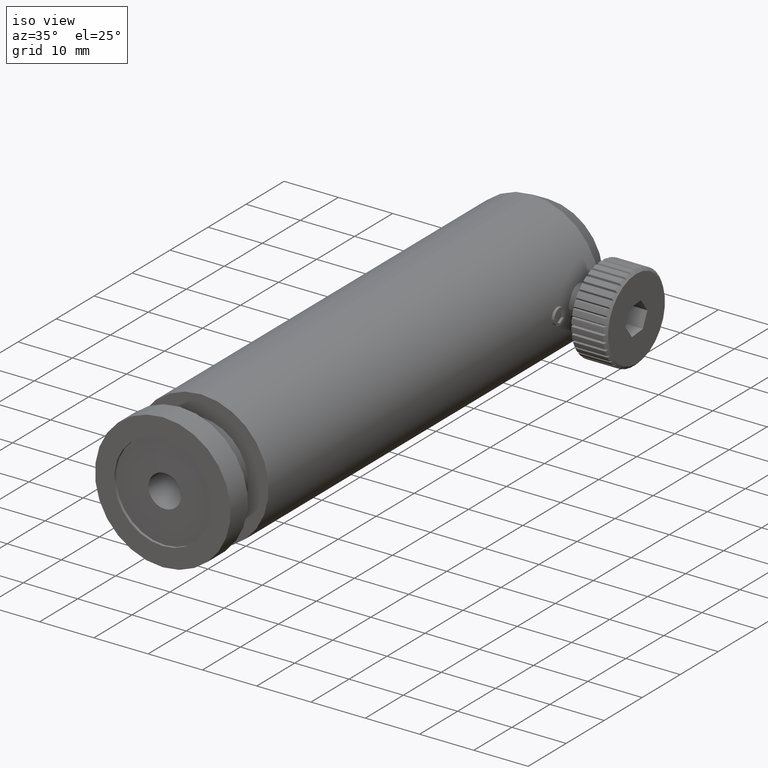
[diagram: clean part render]
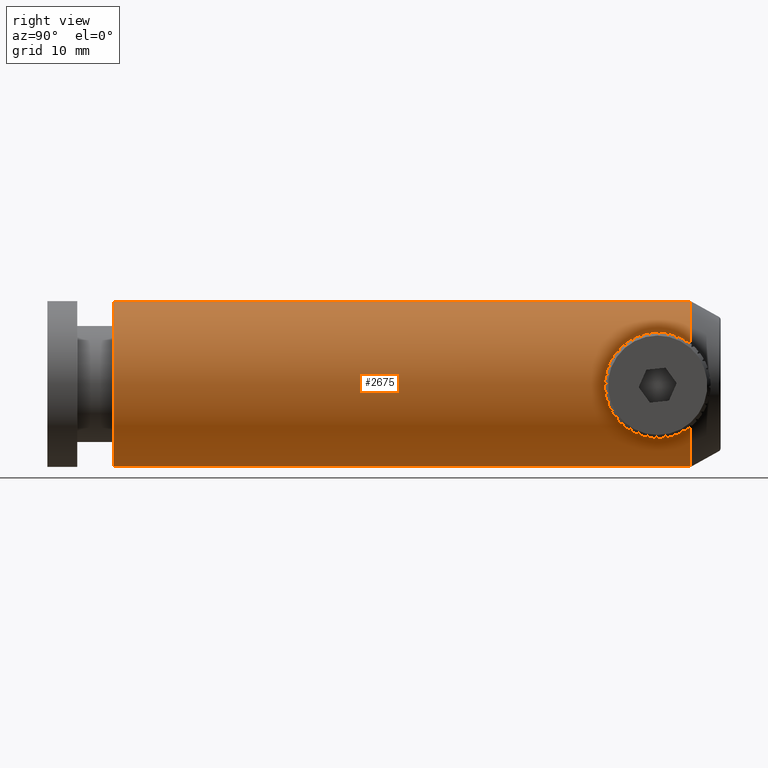
[diagram: tour spotlight — one face highlighted and labeled with its STEP entity id]
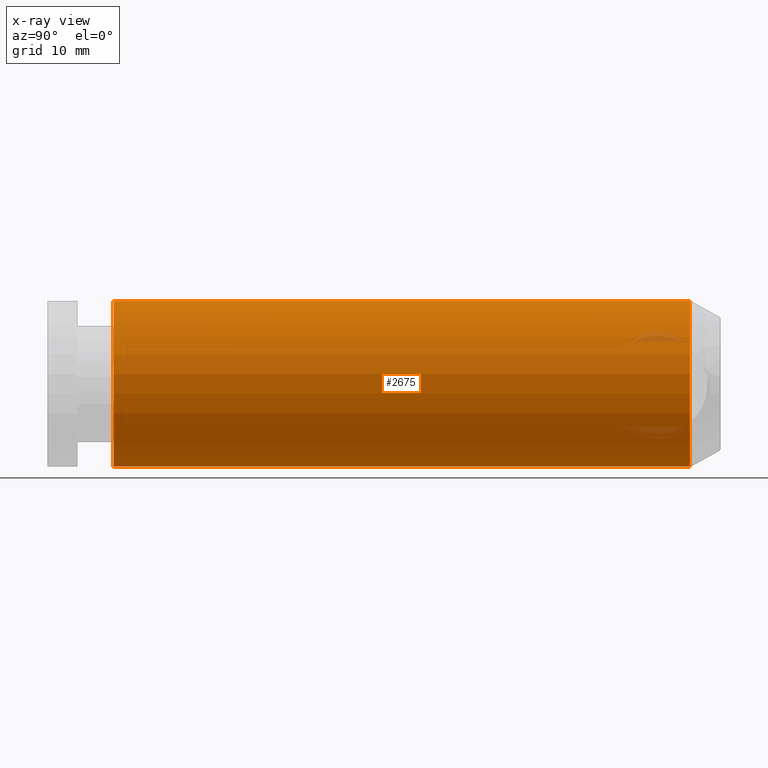
[diagram: x-ray of the same camera — body ghosted, this tour face saturated]
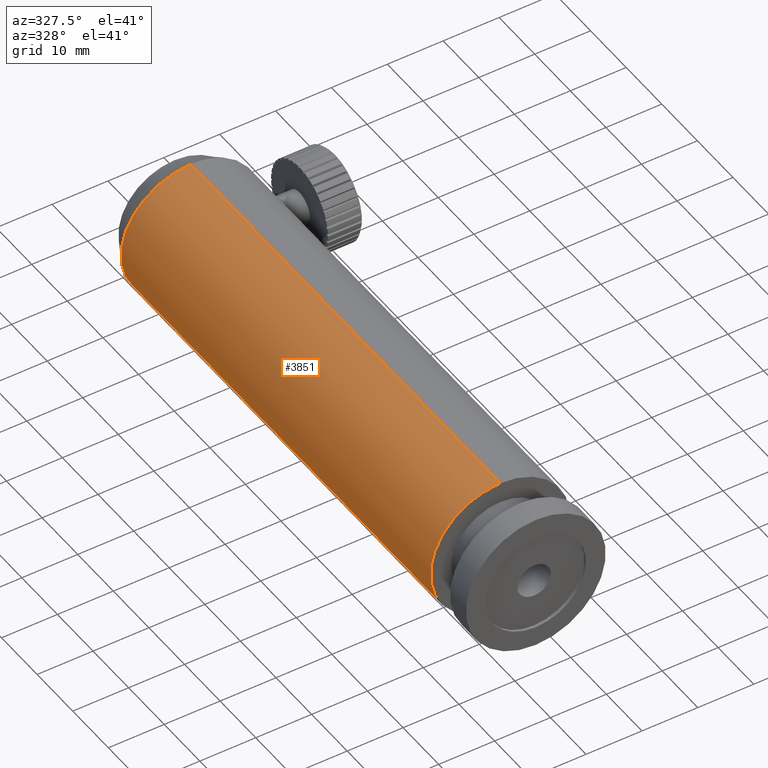
[diagram: tour spotlight — one face highlighted and labeled with its STEP entity id]
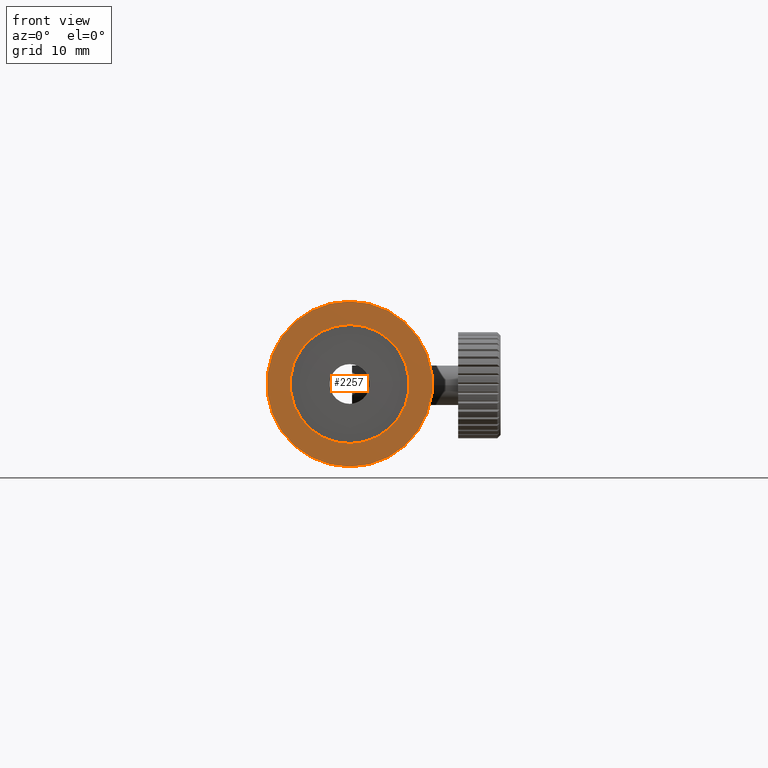
[diagram: tour spotlight — one face highlighted and labeled with its STEP entity id]
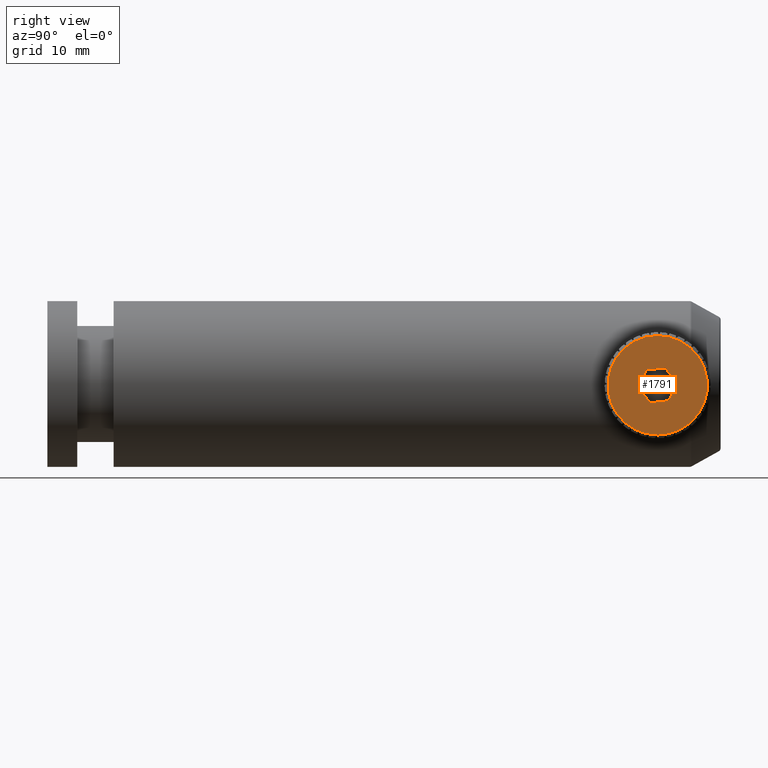
[diagram: tour spotlight — one face highlighted and labeled with its STEP entity id]
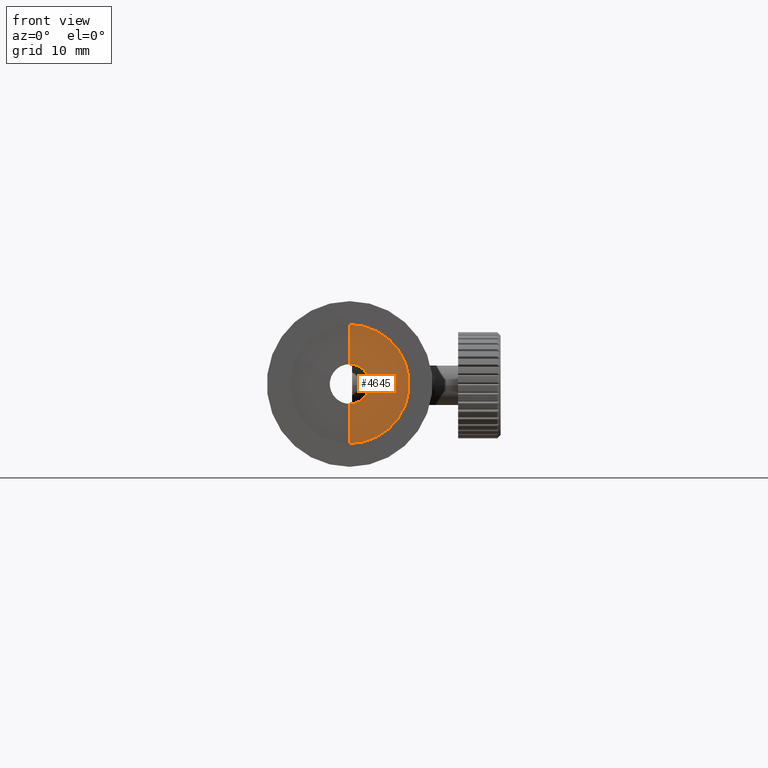
[diagram: tour spotlight — one face highlighted and labeled with its STEP entity id]
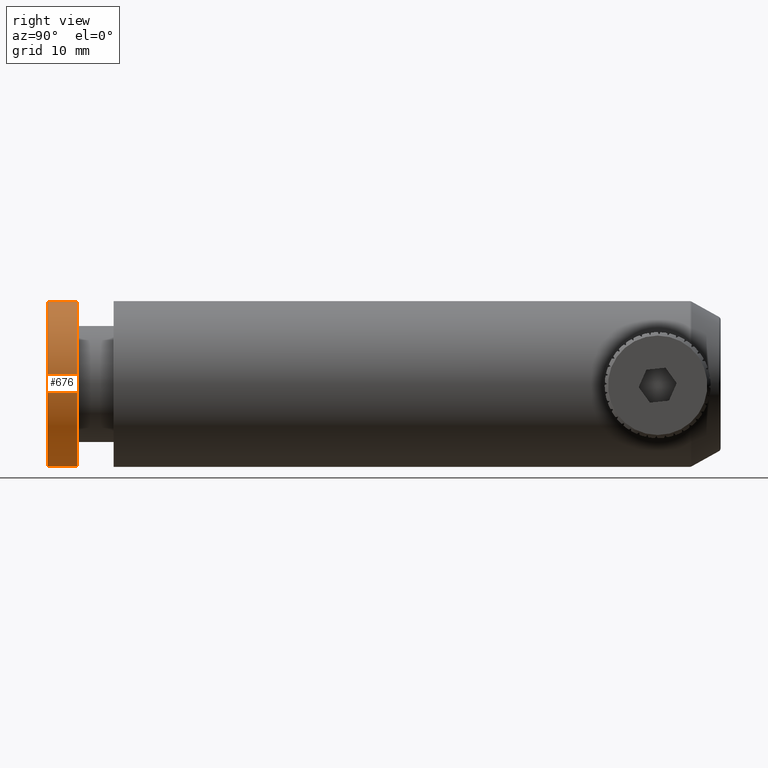
[diagram: tour spotlight — one face highlighted and labeled with its STEP entity id]
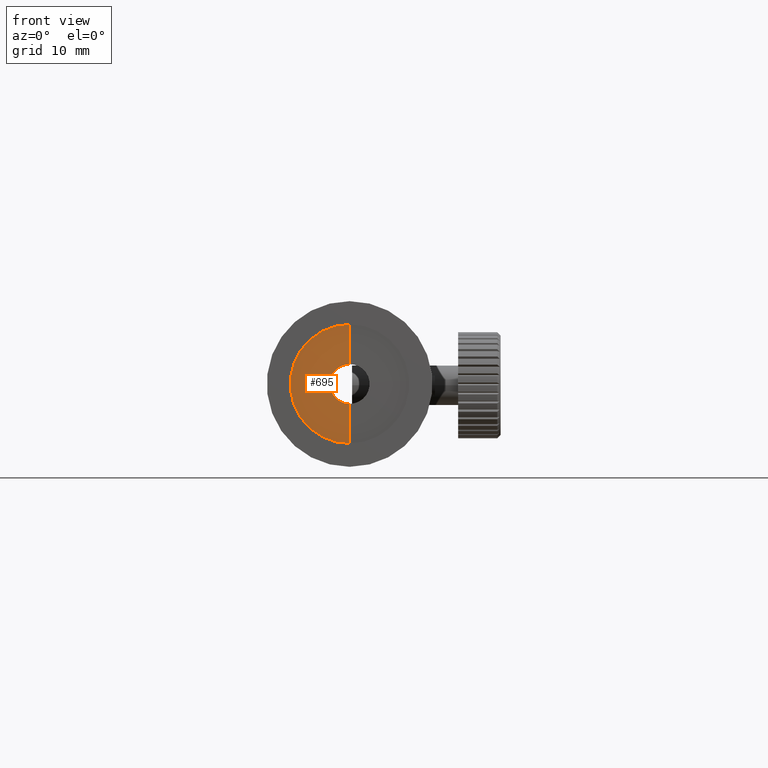
[diagram: tour spotlight — one face highlighted and labeled with its STEP entity id]
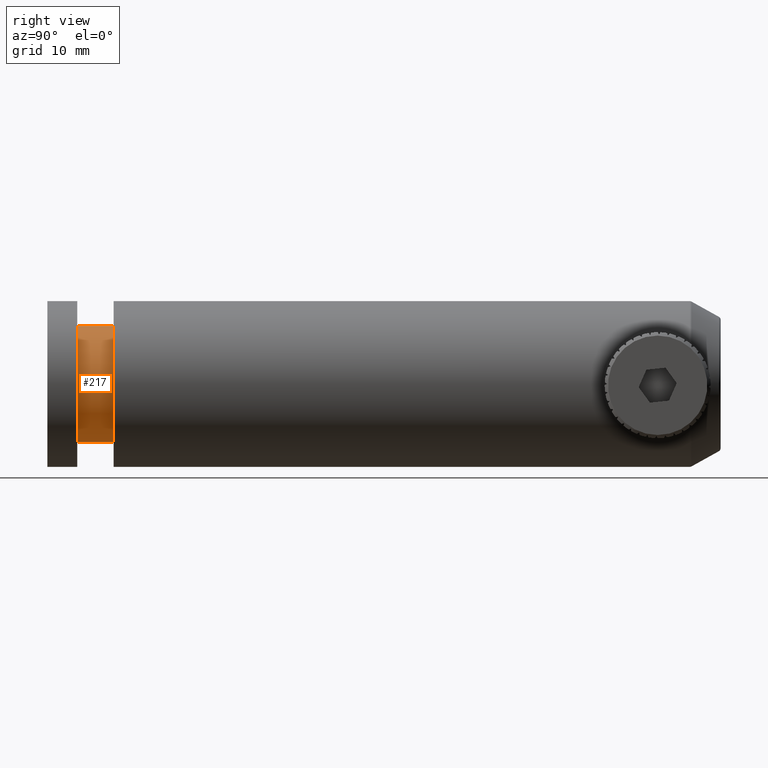
[diagram: tour spotlight — one face highlighted and labeled with its STEP entity id]
A machine part: a face-by-face anatomy tour. The part has 163 B-rep faces; the first image is the clean iso view, then the 8 largest visible faces are spotlighted one at a time (largest first), each with its STEP entity span.

Face 1 — right view, entity #2675. An x-ray twin of the same camera follows (body ghosted, this face saturated) — the face is partly hidden behind the body. In plain terms, the highlighted cylindrical surface (partial cylindrical patch) has radius 12.5 mm, axis along (-0, -1, -0).
Definition (entity closure, byte-faithful):
#15 = DIRECTION ( 'NONE',  ( -0.0000000000000000000, -1.000000000000000000, -0.0000000000000000000 ) ) ;
#55 = EDGE_CURVE ( 'NONE', #279, #980, #3247, .T. ) ;
#142 = CYLINDRICAL_SURFACE ( 'NONE', #4853, 12.50000000000000000 ) ;
#246 = CARTESIAN_POINT ( 'NONE',  ( -3.891022268973183300, 80.65682492629146300, 11.50000000000000000 ) ) ;
#262 = ORIENTED_EDGE ( 'NONE', *, *, #310, .F. ) ;
#279 = VERTEX_POINT ( 'NONE', #4040 ) ;
#291 = VECTOR ( 'NONE', #15, 1000.000000000000000 ) ;
#310 = EDGE_CURVE ( 'NONE', #279, #1999, #5162, .T. ) ;
#625 = DIRECTION ( 'NONE',  ( -0.0000000000000000000, -1.000000000000000000, -0.0000000000000000000 ) ) ;
#715 = CIRCLE ( 'NONE', #1389, 12.50000000000000000 ) ;
#911 = DIRECTION ( 'NONE',  ( -0.0000000000000000000, -1.000000000000000000, -0.0000000000000000000 ) ) ;
#975 = ORIENTED_EDGE ( 'NONE', *, *, #55, .T. ) ;
#980 = VERTEX_POINT ( 'NONE', #246 ) ;
#1212 = CARTESIAN_POINT ( 'NONE',  ( -3.891022268973185000, -24.16253506236343200, -13.50000000000000200 ) ) ;
#1389 = AXIS2_PLACEMENT_3D ( 'NONE', #4582, #911, #2898 ) ;
#1518 = DIRECTION ( 'NONE',  ( -0.0000000000000000000, -1.000000000000000000, -0.0000000000000000000 ) ) ;
#1618 = CARTESIAN_POINT ( 'NONE',  ( -3.891022268973185000, -6.313612059609841500, -13.50000000000000200 ) ) ;
#1623 = FACE_OUTER_BOUND ( 'NONE', #2686, .T. ) ;
#1995 = ORIENTED_EDGE ( 'NONE', *, *, #2417, .T. ) ;
#1999 = VERTEX_POINT ( 'NONE', #1618 ) ;
#2161 = CARTESIAN_POINT ( 'NONE',  ( -3.891022268973185000, 80.65682492629146300, -1.000000000000000000 ) ) ;
#2170 = DIRECTION ( 'NONE',  ( -0.0000000000000000000, -1.000000000000000000, -0.0000000000000000000 ) ) ;
#2361 = EDGE_CURVE ( 'NONE', #1999, #5224, #715, .T. ) ;
#2417 = EDGE_CURVE ( 'NONE', #980, #5224, #3510, .T. ) ;
#2675 = ADVANCED_FACE ( 'NONE', ( #1623 ), #142, .T. ) ;
#2686 = EDGE_LOOP ( 'NONE', ( #975, #1995, #5082, #262 ) ) ;
#2898 = DIRECTION ( 'NONE',  ( 0.0000000000000000000, 0.0000000000000000000, -1.000000000000000000 ) ) ;
#3007 = AXIS2_PLACEMENT_3D ( 'NONE', #2161, #2170, #4137 ) ;
#3247 = CIRCLE ( 'NONE', #3007, 12.50000000000000000 ) ;
#3510 = LINE ( 'NONE', #4200, #4346 ) ;
#4040 = CARTESIAN_POINT ( 'NONE',  ( -3.891022268973185000, 80.65682492629146300, -13.50000000000000200 ) ) ;
#4137 = DIRECTION ( 'NONE',  ( 0.0000000000000000000, 0.0000000000000000000, -1.000000000000000000 ) ) ;
#4200 = CARTESIAN_POINT ( 'NONE',  ( -3.891022268973183300, -24.16253506236343200, 11.50000000000000000 ) ) ;
#4346 = VECTOR ( 'NONE', #1518, 1000.000000000000000 ) ;
#4573 = DIRECTION ( 'NONE',  ( 0.0000000000000000000, 0.0000000000000000000, -1.000000000000000000 ) ) ;
#4578 = CARTESIAN_POINT ( 'NONE',  ( -3.891022268973185000, -24.16253506236343200, -1.000000000000000000 ) ) ;
#4582 = CARTESIAN_POINT ( 'NONE',  ( -3.891022268973185000, -6.313612059609841500, -1.000000000000000000 ) ) ;
#4712 = CARTESIAN_POINT ( 'NONE',  ( -3.891022268973183300, -6.313612059609841500, 11.50000000000000000 ) ) ;
#4853 = AXIS2_PLACEMENT_3D ( 'NONE', #4578, #625, #4573 ) ;
#5082 = ORIENTED_EDGE ( 'NONE', *, *, #2361, .F. ) ;
#5162 = LINE ( 'NONE', #1212, #291 ) ;
#5224 = VERTEX_POINT ( 'NONE', #4712 ) ;

Face 2 — auxiliary view, entity #3851. In plain terms, the highlighted cylindrical surface (partial cylindrical patch) has radius 12.5 mm, axis along (-0, -1, -0).
Definition (entity closure, byte-faithful):
#15 = DIRECTION ( 'NONE',  ( -0.0000000000000000000, -1.000000000000000000, -0.0000000000000000000 ) ) ;
#246 = CARTESIAN_POINT ( 'NONE',  ( -3.891022268973183300, 80.65682492629146300, 11.50000000000000000 ) ) ;
#279 = VERTEX_POINT ( 'NONE', #4040 ) ;
#291 = VECTOR ( 'NONE', #15, 1000.000000000000000 ) ;
#310 = EDGE_CURVE ( 'NONE', #279, #1999, #5162, .T. ) ;
#315 = EDGE_CURVE ( 'NONE', #5224, #1999, #1378, .T. ) ;
#426 = DIRECTION ( 'NONE',  ( -0.0000000000000000000, -1.000000000000000000, -0.0000000000000000000 ) ) ;
#554 = AXIS2_PLACEMENT_3D ( 'NONE', #1996, #426, #4865 ) ;
#885 = CARTESIAN_POINT ( 'NONE',  ( -3.891022268973185000, -24.16253506236343200, -1.000000000000000000 ) ) ;
#949 = ORIENTED_EDGE ( 'NONE', *, *, #310, .T. ) ;
#980 = VERTEX_POINT ( 'NONE', #246 ) ;
#989 = CARTESIAN_POINT ( 'NONE',  ( -3.891022268973185000, 80.65682492629146300, -1.000000000000000000 ) ) ;
#1095 = ORIENTED_EDGE ( 'NONE', *, *, #315, .F. ) ;
#1212 = CARTESIAN_POINT ( 'NONE',  ( -3.891022268973185000, -24.16253506236343200, -13.50000000000000200 ) ) ;
#1378 = CIRCLE ( 'NONE', #554, 12.50000000000000000 ) ;
#1393 = AXIS2_PLACEMENT_3D ( 'NONE', #885, #2942, #5197 ) ;
#1476 = DIRECTION ( 'NONE',  ( 0.0000000000000000000, 0.0000000000000000000, -1.000000000000000000 ) ) ;
#1518 = DIRECTION ( 'NONE',  ( -0.0000000000000000000, -1.000000000000000000, -0.0000000000000000000 ) ) ;
#1618 = CARTESIAN_POINT ( 'NONE',  ( -3.891022268973185000, -6.313612059609841500, -13.50000000000000200 ) ) ;
#1996 = CARTESIAN_POINT ( 'NONE',  ( -3.891022268973185000, -6.313612059609841500, -1.000000000000000000 ) ) ;
#1999 = VERTEX_POINT ( 'NONE', #1618 ) ;
#2002 = CIRCLE ( 'NONE', #4111, 12.50000000000000000 ) ;
#2224 = EDGE_CURVE ( 'NONE', #980, #279, #2002, .T. ) ;
#2417 = EDGE_CURVE ( 'NONE', #980, #5224, #3510, .T. ) ;
#2699 = ORIENTED_EDGE ( 'NONE', *, *, #2224, .T. ) ;
#2942 = DIRECTION ( 'NONE',  ( -0.0000000000000000000, -1.000000000000000000, -0.0000000000000000000 ) ) ;
#3058 = DIRECTION ( 'NONE',  ( -0.0000000000000000000, -1.000000000000000000, -0.0000000000000000000 ) ) ;
#3510 = LINE ( 'NONE', #4200, #4346 ) ;
#3851 = ADVANCED_FACE ( 'NONE', ( #4575 ), #4987, .T. ) ;
#4040 = CARTESIAN_POINT ( 'NONE',  ( -3.891022268973185000, 80.65682492629146300, -13.50000000000000200 ) ) ;
#4111 = AXIS2_PLACEMENT_3D ( 'NONE', #989, #3058, #1476 ) ;
#4143 = EDGE_LOOP ( 'NONE', ( #4546, #2699, #949, #1095 ) ) ;
#4200 = CARTESIAN_POINT ( 'NONE',  ( -3.891022268973183300, -24.16253506236343200, 11.50000000000000000 ) ) ;
#4346 = VECTOR ( 'NONE', #1518, 1000.000000000000000 ) ;
#4546 = ORIENTED_EDGE ( 'NONE', *, *, #2417, .F. ) ;
#4575 = FACE_OUTER_BOUND ( 'NONE', #4143, .T. ) ;
#4712 = CARTESIAN_POINT ( 'NONE',  ( -3.891022268973183300, -6.313612059609841500, 11.50000000000000000 ) ) ;
#4865 = DIRECTION ( 'NONE',  ( 0.0000000000000000000, 0.0000000000000000000, -1.000000000000000000 ) ) ;
#4987 = CYLINDRICAL_SURFACE ( 'NONE', #1393, 12.50000000000000000 ) ;
#5162 = LINE ( 'NONE', #1212, #291 ) ;
#5197 = DIRECTION ( 'NONE',  ( 0.0000000000000000000, 0.0000000000000000000, -1.000000000000000000 ) ) ;
#5224 = VERTEX_POINT ( 'NONE', #4712 ) ;

Face 3 — front view, entity #2257. In plain terms, the highlighted planar face has unit normal (0, 1, 0).
Definition (entity closure, byte-faithful):
#13 = EDGE_LOOP ( 'NONE', ( #3638, #5262 ) ) ;
#116 = DIRECTION ( 'NONE',  ( -0.0000000000000000000, -1.000000000000000000, -0.0000000000000000000 ) ) ;
#147 = CIRCLE ( 'NONE', #2947, 8.978359672281113600 ) ;
#329 = CARTESIAN_POINT ( 'NONE',  ( -16.39102226897318500, -16.31361205960983400, -1.000000000000000000 ) ) ;
#549 = CIRCLE ( 'NONE', #4564, 12.50000000000000000 ) ;
#568 = CARTESIAN_POINT ( 'NONE',  ( -3.891022268973185000, -16.31361205960983400, -1.000000000000000000 ) ) ;
#598 = CARTESIAN_POINT ( 'NONE',  ( -3.891022268973185000, -16.31361205960983400, -1.000000000000000000 ) ) ;
#644 = CARTESIAN_POINT ( 'NONE',  ( -3.891022268973185000, -16.31361205960983400, -1.000000000000000000 ) ) ;
#1149 = DIRECTION ( 'NONE',  ( 0.0000000000000000000, -0.0000000000000000000, 1.000000000000000000 ) ) ;
#1207 = DIRECTION ( 'NONE',  ( 0.0000000000000000000, 0.0000000000000000000, -1.000000000000000000 ) ) ;
#1259 = CARTESIAN_POINT ( 'NONE',  ( -3.891022268973185000, -16.31361205960983400, 7.978359672281113600 ) ) ;
#1328 = AXIS2_PLACEMENT_3D ( 'NONE', #598, #3993, #1207 ) ;
#1385 = DIRECTION ( 'NONE',  ( 0.0000000000000000000, 0.0000000000000000000, -1.000000000000000000 ) ) ;
#1497 = DIRECTION ( 'NONE',  ( 0.0000000000000000000, 1.000000000000000000, 0.0000000000000000000 ) ) ;
#1761 = ORIENTED_EDGE ( 'NONE', *, *, #1837, .F. ) ;
#1837 = EDGE_CURVE ( 'NONE', #5053, #2566, #147, .T. ) ;
#1908 = DIRECTION ( 'NONE',  ( 0.0000000000000000000, 0.0000000000000000000, -1.000000000000000000 ) ) ;
#2257 = ADVANCED_FACE ( 'NONE', ( #4355, #3566 ), #3163, .F. ) ;
#2273 = AXIS2_PLACEMENT_3D ( 'NONE', #329, #1497, #1149 ) ;
#2466 = CARTESIAN_POINT ( 'NONE',  ( -3.891022268973183700, -16.31361205960983400, -9.978359672281115400 ) ) ;
#2566 = VERTEX_POINT ( 'NONE', #2466 ) ;
#2743 = AXIS2_PLACEMENT_3D ( 'NONE', #3562, #2765, #2823 ) ;
#2752 = EDGE_LOOP ( 'NONE', ( #1761, #3030 ) ) ;
#2765 = DIRECTION ( 'NONE',  ( -0.0000000000000000000, -1.000000000000000000, -0.0000000000000000000 ) ) ;
#2823 = DIRECTION ( 'NONE',  ( 0.0000000000000000000, 0.0000000000000000000, -1.000000000000000000 ) ) ;
#2897 = VERTEX_POINT ( 'NONE', #3971 ) ;
#2911 = EDGE_CURVE ( 'NONE', #2566, #5053, #4341, .T. ) ;
#2947 = AXIS2_PLACEMENT_3D ( 'NONE', #644, #3090, #1908 ) ;
#3030 = ORIENTED_EDGE ( 'NONE', *, *, #2911, .F. ) ;
#3050 = CARTESIAN_POINT ( 'NONE',  ( -3.891022268973183300, -16.31361205960983400, 11.50000000000000000 ) ) ;
#3090 = DIRECTION ( 'NONE',  ( -0.0000000000000000000, -1.000000000000000000, -0.0000000000000000000 ) ) ;
#3163 = PLANE ( 'NONE',  #2273 ) ;
#3378 = EDGE_CURVE ( 'NONE', #5199, #2897, #4837, .T. ) ;
#3562 = CARTESIAN_POINT ( 'NONE',  ( -3.891022268973185000, -16.31361205960983400, -1.000000000000000000 ) ) ;
#3566 = FACE_OUTER_BOUND ( 'NONE', #13, .T. ) ;
#3638 = ORIENTED_EDGE ( 'NONE', *, *, #4588, .T. ) ;
#3971 = CARTESIAN_POINT ( 'NONE',  ( -3.891022268973185000, -16.31361205960983400, -13.50000000000000200 ) ) ;
#3993 = DIRECTION ( 'NONE',  ( -0.0000000000000000000, -1.000000000000000000, -0.0000000000000000000 ) ) ;
#4341 = CIRCLE ( 'NONE', #2743, 8.978359672281113600 ) ;
#4355 = FACE_BOUND ( 'NONE', #2752, .T. ) ;
#4564 = AXIS2_PLACEMENT_3D ( 'NONE', #568, #116, #1385 ) ;
#4588 = EDGE_CURVE ( 'NONE', #2897, #5199, #549, .T. ) ;
#4837 = CIRCLE ( 'NONE', #1328, 12.50000000000000000 ) ;
#5053 = VERTEX_POINT ( 'NONE', #1259 ) ;
#5199 = VERTEX_POINT ( 'NONE', #3050 ) ;
#5262 = ORIENTED_EDGE ( 'NONE', *, *, #3378, .T. ) ;

Face 4 — right view, entity #1791. In plain terms, the highlighted planar face has unit normal (-1, 0, -0).
Definition (entity closure, byte-faithful):
#52 = CARTESIAN_POINT ( 'NONE',  ( 18.88421014442428000, 76.95875149867944700, 1.442051653525515500 ) ) ;
#158 = LINE ( 'NONE', #159, #847 ) ;
#159 = CARTESIAN_POINT ( 'NONE',  ( 18.88421014442428000, 77.48475705045689200, -3.530203183014877700 ) ) ;
#213 = VECTOR ( 'NONE', #2588, 1000.000000000000000 ) ;
#254 = CARTESIAN_POINT ( 'NONE',  ( 18.88421014442428000, 72.91565527203415800, -1.499609935115584900 ) ) ;
#312 = CARTESIAN_POINT ( 'NONE',  ( 18.88421014442428000, 75.78638794039017100, 6.304079511798359900 ) ) ;
#318 = AXIS2_PLACEMENT_3D ( 'NONE', #515, #3806, #4596 ) ;
#432 = DIRECTION ( 'NONE',  ( -1.000000000000000000, 0.0000000000000000000, 0.0000000000000000000 ) ) ;
#457 = VECTOR ( 'NONE', #2423, 1000.000000000000100 ) ;
#515 = CARTESIAN_POINT ( 'NONE',  ( 18.88421014442428000, 75.78638794039017100, -1.195920488201649000 ) ) ;
#524 = FACE_BOUND ( 'NONE', #5205, .T. ) ;
#531 = AXIS2_PLACEMENT_3D ( 'NONE', #880, #432, #3308 ) ;
#708 = CIRCLE ( 'NONE', #4002, 7.500000000000008000 ) ;
#847 = VECTOR ( 'NONE', #3752, 1000.000000000000000 ) ;
#865 = DIRECTION ( 'NONE',  ( 0.0000000000000000000, -0.9944509673080784700, -0.1052011103554854700 ) ) ;
#880 = CARTESIAN_POINT ( 'NONE',  ( 18.88421014442428000, 75.78638794039017100, -1.195920488201649200 ) ) ;
#1044 = DIRECTION ( 'NONE',  ( 0.0000000000000000000, -0.4061186495798561600, -0.9138203556845482200 ) ) ;
#1061 = VERTEX_POINT ( 'NONE', #312 ) ;
#1081 = CARTESIAN_POINT ( 'NONE',  ( 18.88421014442428000, 74.08801883032343500, 1.138362206611580400 ) ) ;
#1170 = VECTOR ( 'NONE', #5217, 1000.000000000000100 ) ;
#1299 = LINE ( 'NONE', #4191, #213 ) ;
#1308 = CARTESIAN_POINT ( 'NONE',  ( 18.88421014442428000, 78.65712060874616900, -0.8922310412877158000 ) ) ;
#1360 = LINE ( 'NONE', #3737, #457 ) ;
#1374 = EDGE_CURVE ( 'NONE', #5069, #3118, #1299, .T. ) ;
#1493 = EDGE_CURVE ( 'NONE', #1629, #4760, #2761, .T. ) ;
#1629 = VERTEX_POINT ( 'NONE', #5233 ) ;
#1746 = ORIENTED_EDGE ( 'NONE', *, *, #1493, .F. ) ;
#1790 = PLANE ( 'NONE',  #318 ) ;
#1791 = ADVANCED_FACE ( 'NONE', ( #3094, #524 ), #1790, .F. ) ;
#1980 = CARTESIAN_POINT ( 'NONE',  ( 18.88421014442428000, 74.61402438210088000, -3.833892629928814500 ) ) ;
#2062 = VERTEX_POINT ( 'NONE', #2072 ) ;
#2072 = CARTESIAN_POINT ( 'NONE',  ( 18.88421014442428000, 74.08801883032343500, 1.138362206611580600 ) ) ;
#2134 = ORIENTED_EDGE ( 'NONE', *, *, #2220, .F. ) ;
#2157 = CARTESIAN_POINT ( 'NONE',  ( 18.88421014442428000, 75.78638794039017100, -1.195920488201649200 ) ) ;
#2220 = EDGE_CURVE ( 'NONE', #5033, #5069, #158, .T. ) ;
#2263 = ORIENTED_EDGE ( 'NONE', *, *, #4507, .F. ) ;
#2423 = DIRECTION ( 'NONE',  ( 0.0000000000000000000, 0.9944509673080784700, 0.1052011103554854700 ) ) ;
#2491 = EDGE_CURVE ( 'NONE', #4760, #5033, #1360, .T. ) ;
#2588 = DIRECTION ( 'NONE',  ( 0.0000000000000000000, -0.5883323177282207000, 0.8086192453290609300 ) ) ;
#2593 = EDGE_CURVE ( 'NONE', #3118, #2062, #4743, .T. ) ;
#2666 = EDGE_CURVE ( 'NONE', #1061, #4805, #708, .T. ) ;
#2687 = ORIENTED_EDGE ( 'NONE', *, *, #1374, .F. ) ;
#2761 = LINE ( 'NONE', #254, #1170 ) ;
#2842 = ORIENTED_EDGE ( 'NONE', *, *, #2666, .F. ) ;
#3094 = FACE_OUTER_BOUND ( 'NONE', #4135, .T. ) ;
#3095 = ORIENTED_EDGE ( 'NONE', *, *, #2491, .F. ) ;
#3118 = VERTEX_POINT ( 'NONE', #3977 ) ;
#3308 = DIRECTION ( 'NONE',  ( 0.0000000000000000000, 0.0000000000000000000, 1.000000000000000000 ) ) ;
#3384 = DIRECTION ( 'NONE',  ( -1.000000000000000000, 0.0000000000000000000, 0.0000000000000000000 ) ) ;
#3457 = EDGE_CURVE ( 'NONE', #2062, #1629, #3529, .T. ) ;
#3529 = LINE ( 'NONE', #1081, #4904 ) ;
#3672 = CARTESIAN_POINT ( 'NONE',  ( 18.88421014442428000, 77.48475705045689200, -3.530203183014878100 ) ) ;
#3737 = CARTESIAN_POINT ( 'NONE',  ( 18.88421014442428000, 74.61402438210088000, -3.833892629928812300 ) ) ;
#3752 = DIRECTION ( 'NONE',  ( 0.0000000000000000000, 0.4061186495798563300, 0.9138203556845481100 ) ) ;
#3806 = DIRECTION ( 'NONE',  ( -1.000000000000000000, 1.155557966632341200E-032, -1.368455531567204200E-048 ) ) ;
#3901 = VECTOR ( 'NONE', #865, 1000.000000000000100 ) ;
#3977 = CARTESIAN_POINT ( 'NONE',  ( 18.88421014442428000, 76.95875149867944700, 1.442051653525516600 ) ) ;
#4002 = AXIS2_PLACEMENT_3D ( 'NONE', #2157, #3384, #4207 ) ;
#4135 = EDGE_LOOP ( 'NONE', ( #2842, #2263 ) ) ;
#4191 = CARTESIAN_POINT ( 'NONE',  ( 18.88421014442428000, 78.65712060874616900, -0.8922310412877133600 ) ) ;
#4207 = DIRECTION ( 'NONE',  ( 0.0000000000000000000, 0.0000000000000000000, 1.000000000000000000 ) ) ;
#4372 = ORIENTED_EDGE ( 'NONE', *, *, #3457, .F. ) ;
#4499 = CIRCLE ( 'NONE', #531, 7.500000000000008000 ) ;
#4507 = EDGE_CURVE ( 'NONE', #4805, #1061, #4499, .T. ) ;
#4596 = DIRECTION ( 'NONE',  ( -1.155557966632341200E-032, -1.000000000000000000, 0.0000000000000000000 ) ) ;
#4632 = ORIENTED_EDGE ( 'NONE', *, *, #2593, .F. ) ;
#4743 = LINE ( 'NONE', #52, #3901 ) ;
#4760 = VERTEX_POINT ( 'NONE', #1980 ) ;
#4805 = VERTEX_POINT ( 'NONE', #5178 ) ;
#4904 = VECTOR ( 'NONE', #1044, 999.9999999999998900 ) ;
#5033 = VERTEX_POINT ( 'NONE', #3672 ) ;
#5069 = VERTEX_POINT ( 'NONE', #1308 ) ;
#5178 = CARTESIAN_POINT ( 'NONE',  ( 18.88421014442428000, 75.78638794039017100, -8.695920488201659600 ) ) ;
#5205 = EDGE_LOOP ( 'NONE', ( #2687, #2134, #3095, #1746, #4372, #4632 ) ) ;
#5217 = DIRECTION ( 'NONE',  ( 0.0000000000000000000, 0.5883323177282208100, -0.8086192453290608200 ) ) ;
#5233 = CARTESIAN_POINT ( 'NONE',  ( 18.88421014442428000, 72.91565527203415800, -1.499609935115582000 ) ) ;

Face 5 — front view, entity #4645. In plain terms, the highlighted conical surface has half-angle 89.592 deg.
Definition (entity closure, byte-faithful):
#75 = VERTEX_POINT ( 'NONE', #2519 ) ;
#118 = DIRECTION ( 'NONE',  ( 0.0000000000000000000, 0.0000000000000000000, -1.000000000000000000 ) ) ;
#156 = VERTEX_POINT ( 'NONE', #5216 ) ;
#252 = DIRECTION ( 'NONE',  ( 0.0000000000000000000, 0.007127214556576722800, 0.9999746010837797800 ) ) ;
#558 = CARTESIAN_POINT ( 'NONE',  ( -3.891022268973185000, -15.81361205956000000, -1.000000000000000000 ) ) ;
#590 = EDGE_LOOP ( 'NONE', ( #3041, #2304, #3223, #2941 ) ) ;
#698 = VERTEX_POINT ( 'NONE', #2482 ) ;
#742 = CONICAL_SURFACE ( 'NONE', #3907, 8.999999999999998200, 1.563669051896531700 ) ;
#963 = DIRECTION ( 'NONE',  ( -0.0000000000000000000, -1.000000000000000000, -0.0000000000000000000 ) ) ;
#1063 = CARTESIAN_POINT ( 'NONE',  ( -3.891022268973185000, -15.77084768605208100, 7.999999999999996400 ) ) ;
#1242 = DIRECTION ( 'NONE',  ( 1.224615694445902400E-016, 0.007127214556576722800, -0.9999746010837797800 ) ) ;
#1312 = EDGE_CURVE ( 'NONE', #1734, #698, #3389, .T. ) ;
#1384 = CIRCLE ( 'NONE', #2673, 8.999999999999998200 ) ;
#1386 = VECTOR ( 'NONE', #252, 1000.000000000000000 ) ;
#1734 = VERTEX_POINT ( 'NONE', #2344 ) ;
#1781 = LINE ( 'NONE', #1063, #1386 ) ;
#2028 = LINE ( 'NONE', #2460, #4921 ) ;
#2304 = ORIENTED_EDGE ( 'NONE', *, *, #3670, .T. ) ;
#2344 = CARTESIAN_POINT ( 'NONE',  ( -3.891022268973185000, -15.81361205956000000, -4.000000000039372100 ) ) ;
#2368 = AXIS2_PLACEMENT_3D ( 'NONE', #558, #963, #118 ) ;
#2460 = CARTESIAN_POINT ( 'NONE',  ( -3.891022268973183700, -15.77084768605208100, -9.999999999999998200 ) ) ;
#2482 = CARTESIAN_POINT ( 'NONE',  ( -3.891022268973184600, -15.81361205956000000, 2.000000000039372100 ) ) ;
#2519 = CARTESIAN_POINT ( 'NONE',  ( -3.891022268973183700, -15.77084768605208100, -9.999999999999998200 ) ) ;
#2673 = AXIS2_PLACEMENT_3D ( 'NONE', #2855, #3845, #4782 ) ;
#2855 = CARTESIAN_POINT ( 'NONE',  ( -3.891022268973185000, -15.77084768605208100, -1.000000000000000000 ) ) ;
#2941 = ORIENTED_EDGE ( 'NONE', *, *, #4690, .F. ) ;
#2983 = DIRECTION ( 'NONE',  ( 0.0000000000000000000, 0.0000000000000000000, 1.000000000000000000 ) ) ;
#3041 = ORIENTED_EDGE ( 'NONE', *, *, #1312, .F. ) ;
#3141 = EDGE_CURVE ( 'NONE', #75, #156, #1384, .T. ) ;
#3223 = ORIENTED_EDGE ( 'NONE', *, *, #3141, .T. ) ;
#3389 = CIRCLE ( 'NONE', #2368, 3.000000000039372100 ) ;
#3670 = EDGE_CURVE ( 'NONE', #1734, #75, #2028, .T. ) ;
#3845 = DIRECTION ( 'NONE',  ( -0.0000000000000000000, -1.000000000000000000, -0.0000000000000000000 ) ) ;
#3907 = AXIS2_PLACEMENT_3D ( 'NONE', #4640, #5044, #2983 ) ;
#4640 = CARTESIAN_POINT ( 'NONE',  ( -3.891022268973185000, -15.77084768605208100, -1.000000000000000000 ) ) ;
#4645 = ADVANCED_FACE ( 'NONE', ( #4913 ), #742, .T. ) ;
#4690 = EDGE_CURVE ( 'NONE', #698, #156, #1781, .T. ) ;
#4782 = DIRECTION ( 'NONE',  ( 0.0000000000000000000, 0.0000000000000000000, -1.000000000000000000 ) ) ;
#4913 = FACE_OUTER_BOUND ( 'NONE', #590, .T. ) ;
#4921 = VECTOR ( 'NONE', #1242, 1000.000000000000000 ) ;
#5044 = DIRECTION ( 'NONE',  ( 0.0000000000000000000, 1.000000000000000000, 0.0000000000000000000 ) ) ;
#5216 = CARTESIAN_POINT ( 'NONE',  ( -3.891022268973185000, -15.77084768605208100, 7.999999999999996400 ) ) ;

Face 6 — right view, entity #676. In plain terms, the highlighted cylindrical surface (partial cylindrical patch) has radius 12.5 mm, axis along (-0, -1, -0).
Definition (entity closure, byte-faithful):
#111 = DIRECTION ( 'NONE',  ( -0.0000000000000000000, -1.000000000000000000, -0.0000000000000000000 ) ) ;
#116 = DIRECTION ( 'NONE',  ( -0.0000000000000000000, -1.000000000000000000, -0.0000000000000000000 ) ) ;
#144 = VERTEX_POINT ( 'NONE', #3842 ) ;
#172 = DIRECTION ( 'NONE',  ( 0.0000000000000000000, 0.0000000000000000000, -1.000000000000000000 ) ) ;
#360 = LINE ( 'NONE', #3227, #1891 ) ;
#385 = CARTESIAN_POINT ( 'NONE',  ( -3.891022268973183300, -11.81361205960983300, 11.50000000000000000 ) ) ;
#549 = CIRCLE ( 'NONE', #4564, 12.50000000000000000 ) ;
#568 = CARTESIAN_POINT ( 'NONE',  ( -3.891022268973185000, -16.31361205960983400, -1.000000000000000000 ) ) ;
#676 = ADVANCED_FACE ( 'NONE', ( #3396 ), #2328, .T. ) ;
#1094 = LINE ( 'NONE', #5179, #3132 ) ;
#1353 = DIRECTION ( 'NONE',  ( 0.0000000000000000000, 0.0000000000000000000, -1.000000000000000000 ) ) ;
#1362 = DIRECTION ( 'NONE',  ( -0.0000000000000000000, -1.000000000000000000, -0.0000000000000000000 ) ) ;
#1385 = DIRECTION ( 'NONE',  ( 0.0000000000000000000, 0.0000000000000000000, -1.000000000000000000 ) ) ;
#1891 = VECTOR ( 'NONE', #4506, 1000.000000000000000 ) ;
#2065 = VERTEX_POINT ( 'NONE', #385 ) ;
#2328 = CYLINDRICAL_SURFACE ( 'NONE', #2815, 12.50000000000000000 ) ;
#2598 = CARTESIAN_POINT ( 'NONE',  ( -3.891022268973185000, -11.81361205960983300, -1.000000000000000000 ) ) ;
#2815 = AXIS2_PLACEMENT_3D ( 'NONE', #4960, #111, #1353 ) ;
#2826 = AXIS2_PLACEMENT_3D ( 'NONE', #2598, #1362, #172 ) ;
#2897 = VERTEX_POINT ( 'NONE', #3971 ) ;
#3004 = EDGE_CURVE ( 'NONE', #2065, #5199, #1094, .T. ) ;
#3050 = CARTESIAN_POINT ( 'NONE',  ( -3.891022268973183300, -16.31361205960983400, 11.50000000000000000 ) ) ;
#3121 = DIRECTION ( 'NONE',  ( -0.0000000000000000000, -1.000000000000000000, -0.0000000000000000000 ) ) ;
#3132 = VECTOR ( 'NONE', #3121, 1000.000000000000000 ) ;
#3227 = CARTESIAN_POINT ( 'NONE',  ( -3.891022268973185000, -24.16253506236343200, -13.50000000000000200 ) ) ;
#3281 = ORIENTED_EDGE ( 'NONE', *, *, #4986, .F. ) ;
#3396 = FACE_OUTER_BOUND ( 'NONE', #4903, .T. ) ;
#3761 = ORIENTED_EDGE ( 'NONE', *, *, #3004, .T. ) ;
#3842 = CARTESIAN_POINT ( 'NONE',  ( -3.891022268973185000, -11.81361205960983300, -13.50000000000000200 ) ) ;
#3856 = CIRCLE ( 'NONE', #2826, 12.50000000000000000 ) ;
#3910 = ORIENTED_EDGE ( 'NONE', *, *, #4643, .T. ) ;
#3971 = CARTESIAN_POINT ( 'NONE',  ( -3.891022268973185000, -16.31361205960983400, -13.50000000000000200 ) ) ;
#4424 = ORIENTED_EDGE ( 'NONE', *, *, #4588, .F. ) ;
#4506 = DIRECTION ( 'NONE',  ( -0.0000000000000000000, -1.000000000000000000, -0.0000000000000000000 ) ) ;
#4564 = AXIS2_PLACEMENT_3D ( 'NONE', #568, #116, #1385 ) ;
#4588 = EDGE_CURVE ( 'NONE', #2897, #5199, #549, .T. ) ;
#4643 = EDGE_CURVE ( 'NONE', #144, #2065, #3856, .T. ) ;
#4903 = EDGE_LOOP ( 'NONE', ( #3910, #3761, #4424, #3281 ) ) ;
#4960 = CARTESIAN_POINT ( 'NONE',  ( -3.891022268973185000, -24.16253506236343200, -1.000000000000000000 ) ) ;
#4986 = EDGE_CURVE ( 'NONE', #144, #2897, #360, .T. ) ;
#5179 = CARTESIAN_POINT ( 'NONE',  ( -3.891022268973183300, -24.16253506236343200, 11.50000000000000000 ) ) ;
#5199 = VERTEX_POINT ( 'NONE', #3050 ) ;

Face 7 — front view, entity #695. In plain terms, the highlighted conical surface has half-angle 89.592 deg.
Definition (entity closure, byte-faithful):
#75 = VERTEX_POINT ( 'NONE', #2519 ) ;
#156 = VERTEX_POINT ( 'NONE', #5216 ) ;
#252 = DIRECTION ( 'NONE',  ( 0.0000000000000000000, 0.007127214556576722800, 0.9999746010837797800 ) ) ;
#313 = CARTESIAN_POINT ( 'NONE',  ( -3.891022268973185000, -15.77084768605208100, -1.000000000000000000 ) ) ;
#498 = DIRECTION ( 'NONE',  ( 0.0000000000000000000, 0.0000000000000000000, 1.000000000000000000 ) ) ;
#695 = ADVANCED_FACE ( 'NONE', ( #3658 ), #3336, .T. ) ;
#698 = VERTEX_POINT ( 'NONE', #2482 ) ;
#735 = AXIS2_PLACEMENT_3D ( 'NONE', #3284, #3296, #4531 ) ;
#1063 = CARTESIAN_POINT ( 'NONE',  ( -3.891022268973185000, -15.77084768605208100, 7.999999999999996400 ) ) ;
#1242 = DIRECTION ( 'NONE',  ( 1.224615694445902400E-016, 0.007127214556576722800, -0.9999746010837797800 ) ) ;
#1386 = VECTOR ( 'NONE', #252, 1000.000000000000000 ) ;
#1734 = VERTEX_POINT ( 'NONE', #2344 ) ;
#1740 = CARTESIAN_POINT ( 'NONE',  ( -3.891022268973185000, -15.77084768605208100, -1.000000000000000000 ) ) ;
#1781 = LINE ( 'NONE', #1063, #1386 ) ;
#2028 = LINE ( 'NONE', #2460, #4921 ) ;
#2060 = CIRCLE ( 'NONE', #735, 3.000000000039372100 ) ;
#2141 = AXIS2_PLACEMENT_3D ( 'NONE', #313, #3598, #4431 ) ;
#2344 = CARTESIAN_POINT ( 'NONE',  ( -3.891022268973185000, -15.81361205956000000, -4.000000000039372100 ) ) ;
#2460 = CARTESIAN_POINT ( 'NONE',  ( -3.891022268973183700, -15.77084768605208100, -9.999999999999998200 ) ) ;
#2482 = CARTESIAN_POINT ( 'NONE',  ( -3.891022268973184600, -15.81361205956000000, 2.000000000039372100 ) ) ;
#2519 = CARTESIAN_POINT ( 'NONE',  ( -3.891022268973183700, -15.77084768605208100, -9.999999999999998200 ) ) ;
#2533 = EDGE_CURVE ( 'NONE', #698, #1734, #2060, .T. ) ;
#2705 = EDGE_LOOP ( 'NONE', ( #4488, #4419, #2965, #2828 ) ) ;
#2828 = ORIENTED_EDGE ( 'NONE', *, *, #3123, .T. ) ;
#2916 = CIRCLE ( 'NONE', #2141, 8.999999999999998200 ) ;
#2922 = AXIS2_PLACEMENT_3D ( 'NONE', #1740, #3359, #498 ) ;
#2965 = ORIENTED_EDGE ( 'NONE', *, *, #4690, .T. ) ;
#3123 = EDGE_CURVE ( 'NONE', #156, #75, #2916, .T. ) ;
#3284 = CARTESIAN_POINT ( 'NONE',  ( -3.891022268973185000, -15.81361205956000000, -1.000000000000000000 ) ) ;
#3296 = DIRECTION ( 'NONE',  ( -0.0000000000000000000, -1.000000000000000000, -0.0000000000000000000 ) ) ;
#3336 = CONICAL_SURFACE ( 'NONE', #2922, 8.999999999999998200, 1.563669051896531700 ) ;
#3359 = DIRECTION ( 'NONE',  ( 0.0000000000000000000, 1.000000000000000000, 0.0000000000000000000 ) ) ;
#3598 = DIRECTION ( 'NONE',  ( -0.0000000000000000000, -1.000000000000000000, -0.0000000000000000000 ) ) ;
#3658 = FACE_OUTER_BOUND ( 'NONE', #2705, .T. ) ;
#3670 = EDGE_CURVE ( 'NONE', #1734, #75, #2028, .T. ) ;
#4419 = ORIENTED_EDGE ( 'NONE', *, *, #2533, .F. ) ;
#4431 = DIRECTION ( 'NONE',  ( 0.0000000000000000000, 0.0000000000000000000, -1.000000000000000000 ) ) ;
#4488 = ORIENTED_EDGE ( 'NONE', *, *, #3670, .F. ) ;
#4531 = DIRECTION ( 'NONE',  ( 0.0000000000000000000, 0.0000000000000000000, -1.000000000000000000 ) ) ;
#4690 = EDGE_CURVE ( 'NONE', #698, #156, #1781, .T. ) ;
#4921 = VECTOR ( 'NONE', #1242, 1000.000000000000000 ) ;
#5216 = CARTESIAN_POINT ( 'NONE',  ( -3.891022268973185000, -15.77084768605208100, 7.999999999999996400 ) ) ;

Face 8 — right view, entity #217. In plain terms, the highlighted cylindrical surface (partial cylindrical patch) has radius 8.75 mm, axis along (-0, -1, -0).
Definition (entity closure, byte-faithful):
#217 = ADVANCED_FACE ( 'NONE', ( #4364 ), #1823, .T. ) ;
#321 = DIRECTION ( 'NONE',  ( -0.0000000000000000000, -1.000000000000000000, -0.0000000000000000000 ) ) ;
#324 = EDGE_LOOP ( 'NONE', ( #3469, #3625, #5295, #4454 ) ) ;
#547 = VERTEX_POINT ( 'NONE', #2540 ) ;
#1144 = AXIS2_PLACEMENT_3D ( 'NONE', #1145, #321, #3944 ) ;
#1145 = CARTESIAN_POINT ( 'NONE',  ( -3.891022268973185000, -6.313612059609841500, -1.000000000000000000 ) ) ;
#1430 = VECTOR ( 'NONE', #5238, 1000.000000000000000 ) ;
#1434 = DIRECTION ( 'NONE',  ( 0.0000000000000000000, 0.0000000000000000000, -1.000000000000000000 ) ) ;
#1492 = CARTESIAN_POINT ( 'NONE',  ( -3.891022268973185000, -24.16253506236343200, -9.750000000000001800 ) ) ;
#1494 = CIRCLE ( 'NONE', #1144, 8.750000000000000000 ) ;
#1524 = EDGE_CURVE ( 'NONE', #4668, #4213, #3573, .T. ) ;
#1601 = AXIS2_PLACEMENT_3D ( 'NONE', #2241, #3864, #1434 ) ;
#1680 = DIRECTION ( 'NONE',  ( -0.0000000000000000000, -1.000000000000000000, -0.0000000000000000000 ) ) ;
#1823 = CYLINDRICAL_SURFACE ( 'NONE', #4196, 8.750000000000000000 ) ;
#1887 = EDGE_CURVE ( 'NONE', #4213, #547, #2559, .T. ) ;
#1910 = EDGE_CURVE ( 'NONE', #4668, #3361, #1494, .T. ) ;
#2241 = CARTESIAN_POINT ( 'NONE',  ( -3.891022268973185000, -11.81361205960983300, -1.000000000000000000 ) ) ;
#2540 = CARTESIAN_POINT ( 'NONE',  ( -3.891022268973184200, -11.81361205960983300, 7.750000000000000900 ) ) ;
#2544 = DIRECTION ( 'NONE',  ( -0.0000000000000000000, -1.000000000000000000, -0.0000000000000000000 ) ) ;
#2559 = CIRCLE ( 'NONE', #1601, 8.750000000000000000 ) ;
#2866 = DIRECTION ( 'NONE',  ( 0.0000000000000000000, 0.0000000000000000000, -1.000000000000000000 ) ) ;
#2976 = VECTOR ( 'NONE', #2544, 1000.000000000000000 ) ;
#2992 = CARTESIAN_POINT ( 'NONE',  ( -3.891022268973184200, -24.16253506236343200, 7.750000000000000900 ) ) ;
#3053 = CARTESIAN_POINT ( 'NONE',  ( -3.891022268973185000, -6.313612059609841500, -9.750000000000001800 ) ) ;
#3361 = VERTEX_POINT ( 'NONE', #3696 ) ;
#3469 = ORIENTED_EDGE ( 'NONE', *, *, #1910, .T. ) ;
#3573 = LINE ( 'NONE', #1492, #1430 ) ;
#3625 = ORIENTED_EDGE ( 'NONE', *, *, #4625, .T. ) ;
#3696 = CARTESIAN_POINT ( 'NONE',  ( -3.891022268973184200, -6.313612059609841500, 7.750000000000000900 ) ) ;
#3864 = DIRECTION ( 'NONE',  ( -0.0000000000000000000, -1.000000000000000000, -0.0000000000000000000 ) ) ;
#3927 = LINE ( 'NONE', #2992, #2976 ) ;
#3940 = CARTESIAN_POINT ( 'NONE',  ( -3.891022268973185000, -11.81361205960983300, -9.750000000000001800 ) ) ;
#3944 = DIRECTION ( 'NONE',  ( 0.0000000000000000000, 0.0000000000000000000, -1.000000000000000000 ) ) ;
#4196 = AXIS2_PLACEMENT_3D ( 'NONE', #4489, #1680, #2866 ) ;
#4213 = VERTEX_POINT ( 'NONE', #3940 ) ;
#4364 = FACE_OUTER_BOUND ( 'NONE', #324, .T. ) ;
#4454 = ORIENTED_EDGE ( 'NONE', *, *, #1524, .F. ) ;
#4489 = CARTESIAN_POINT ( 'NONE',  ( -3.891022268973185000, -24.16253506236343200, -1.000000000000000000 ) ) ;
#4625 = EDGE_CURVE ( 'NONE', #3361, #547, #3927, .T. ) ;
#4668 = VERTEX_POINT ( 'NONE', #3053 ) ;
#5238 = DIRECTION ( 'NONE',  ( -0.0000000000000000000, -1.000000000000000000, -0.0000000000000000000 ) ) ;
#5295 = ORIENTED_EDGE ( 'NONE', *, *, #1887, .F. ) ;